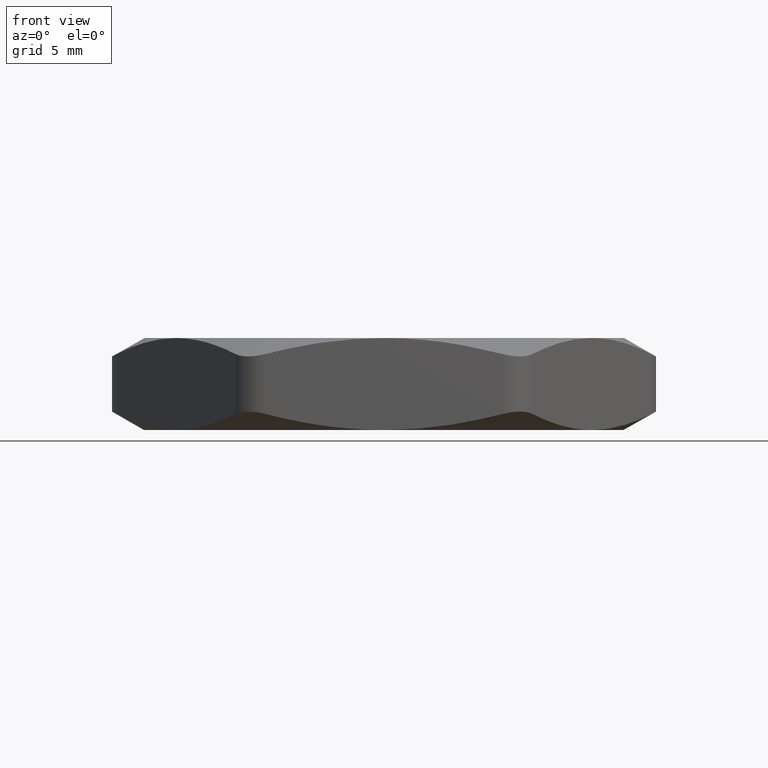
[diagram: clean part render]
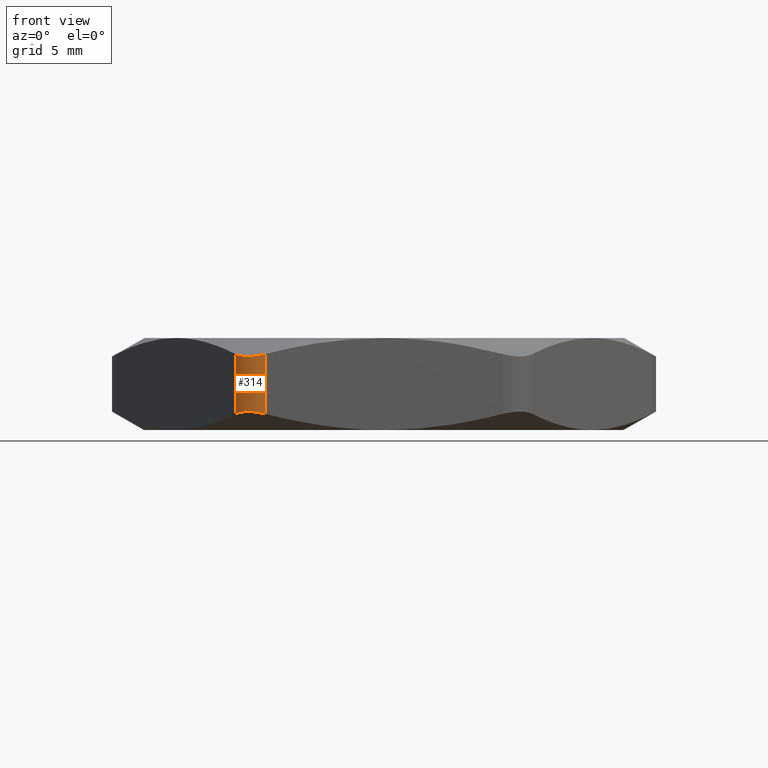
[diagram: same view with one face highlighted and labeled with its STEP entity id]
A machine part, front view. The second image highlights one B-rep face of the part: STEP entity #314.
In plain terms, the highlighted cylindrical surface (edge-blend (fillet) strip) has radius 2.54 mm, axis along (0, 0, -1).
Its self-contained STEP definition (entity closure, byte-faithful):
#103 = VERTEX_POINT ( 'NONE', #1077 ) ;
#106 = VERTEX_POINT ( 'NONE', #1067 ) ;
#108 = EDGE_CURVE ( 'NONE', #106, #109, #1112, .T. ) ;
#109 = VERTEX_POINT ( 'NONE', #1108 ) ;
#162 = EDGE_CURVE ( 'NONE', #103, #163, #1243, .T. ) ;
#163 = VERTEX_POINT ( 'NONE', #1239 ) ;
#221 = EDGE_CURVE ( 'NONE', #109, #103, #1391, .T. ) ;
#278 = EDGE_CURVE ( 'NONE', #163, #106, #1516, .T. ) ;
#314 = ADVANCED_FACE ( 'NONE', ( #1541 ), #1536, .T. ) ;
#315 = EDGE_LOOP ( 'NONE', ( #316, #317, #318, #319 ) ) ;
#316 = ORIENTED_EDGE ( 'NONE', *, *, #221, .F. ) ;
#317 = ORIENTED_EDGE ( 'NONE', *, *, #108, .F. ) ;
#318 = ORIENTED_EDGE ( 'NONE', *, *, #278, .F. ) ;
#319 = ORIENTED_EDGE ( 'NONE', *, *, #162, .F. ) ;
#1067 = CARTESIAN_POINT ( 'NONE',  ( -0.4358994532381677600, -0.6550000000000000300, 0.04721958134638865000 ) ) ;
#1077 = CARTESIAN_POINT ( 'NONE',  ( -0.3492969128597265800, -0.7049999999999999600, 0.2227804186536107600 ) ) ;
#1108 = CARTESIAN_POINT ( 'NONE',  ( -0.4358994532381677600, -0.6550000000000000300, 0.2227804186536113700 ) ) ;
#1109 = DIRECTION ( 'NONE',  ( 0.0000000000000000000, 0.0000000000000000000, 1.000000000000000000 ) ) ;
#1110 = VECTOR ( 'NONE', #1109, 39.37007874015748100 ) ;
#1111 = CARTESIAN_POINT ( 'NONE',  ( -0.4358994532381677600, -0.6550000000000000300, 0.2700000000000000200 ) ) ;
#1112 = LINE ( 'NONE', #1111, #1110 ) ;
#1239 = CARTESIAN_POINT ( 'NONE',  ( -0.3492969128597263100, -0.7049999999999999600, 0.04721958134638920600 ) ) ;
#1240 = DIRECTION ( 'NONE',  ( 0.0000000000000000000, 0.0000000000000000000, -1.000000000000000000 ) ) ;
#1241 = VECTOR ( 'NONE', #1240, 39.37007874015748100 ) ;
#1242 = CARTESIAN_POINT ( 'NONE',  ( -0.3492969128597239700, -0.7049999999999999600, 0.2700000000000000200 ) ) ;
#1243 = LINE ( 'NONE', #1242, #1241 ) ;
#1380 = CARTESIAN_POINT ( 'NONE',  ( -0.3492969128597265800, -0.7049999999999999600, 0.2227804186536107600 ) ) ;
#1381 = CARTESIAN_POINT ( 'NONE',  ( -0.3579153881233679300, -0.7050000000000002900, 0.2205713585014348600 ) ) ;
#1382 = CARTESIAN_POINT ( 'NONE',  ( -0.3666474123574546800, -0.7038672647533991100, 0.2188516165337894300 ) ) ;
#1383 = CARTESIAN_POINT ( 'NONE',  ( -0.3834696504457439900, -0.6993822010684029900, 0.2165566018828655200 ) ) ;
#1384 = CARTESIAN_POINT ( 'NONE',  ( -0.3917624365260937200, -0.6959611015490526600, 0.2159598489262498900 ) ) ;
#1385 = CARTESIAN_POINT ( 'NONE',  ( -0.4069776264820405000, -0.6871594667174537600, 0.2159673461466405900 ) ) ;
#1386 = CARTESIAN_POINT ( 'NONE',  ( -0.4140161126246345600, -0.6817342817714963100, 0.2165617854518041800 ) ) ;
#1387 = CARTESIAN_POINT ( 'NONE',  ( -0.4263709331305969300, -0.6693142302797981900, 0.2188831182167219100 ) ) ;
#1388 = CARTESIAN_POINT ( 'NONE',  ( -0.4315914703087659300, -0.6624616453118630200, 0.2205720017040976900 ) ) ;
#1389 = CARTESIAN_POINT ( 'NONE',  ( -0.4358994532381677600, -0.6550000000000000300, 0.2227804186536113700 ) ) ;
#1391 = B_SPLINE_CURVE_WITH_KNOTS ( 'NONE', 3,
 ( #1389, #1388, #1387, #1386, #1385, #1384, #1383, #1382, #1381, #1380 ),
 .UNSPECIFIED., .F., .F.,
 ( 4, 2, 2, 2, 4 ),
 ( 0.0000000000000000000, 0.0006686882709469507100, 0.001337376541893901400, 0.002006064812840852000, 0.002674753083787802900 ),
 .UNSPECIFIED. ) ;
#1504 = CARTESIAN_POINT ( 'NONE',  ( -0.4358994532381677600, -0.6550000000000000300, 0.04721958134638865000 ) ) ;
#1505 = CARTESIAN_POINT ( 'NONE',  ( -0.4315902156063468600, -0.6624638185202023100, 0.04942864149856485100 ) ) ;
#1506 = CARTESIAN_POINT ( 'NONE',  ( -0.4262432259899855400, -0.6694596057100812300, 0.05114838346621022900 ) ) ;
#1507 = CARTESIAN_POINT ( 'NONE',  ( -0.4139479278570436500, -0.6817855594005524100, 0.05344339811713431900 ) ) ;
#1508 = CARTESIAN_POINT ( 'NONE',  ( -0.4068387757242371600, -0.6872567730546103000, 0.05404015107375000100 ) ) ;
#1509 = CARTESIAN_POINT ( 'NONE',  ( -0.3916087413872652600, -0.6960326966640670900, 0.05403265385335957000 ) ) ;
#1510 = CARTESIAN_POINT ( 'NONE',  ( -0.3833911503325404500, -0.6994156119947598800, 0.05343821454819604900 ) ) ;
#1511 = CARTESIAN_POINT ( 'NONE',  ( -0.3664576599714380300, -0.7039051746662713400, 0.05111688178327860500 ) ) ;
#1512 = CARTESIAN_POINT ( 'NONE',  ( -0.3579128787185275100, -0.7049999999999998500, 0.04942799829590921500 ) ) ;
#1513 = CARTESIAN_POINT ( 'NONE',  ( -0.3492969128597263100, -0.7049999999999999600, 0.04721958134638920600 ) ) ;
#1516 = B_SPLINE_CURVE_WITH_KNOTS ( 'NONE', 3,
 ( #1513, #1512, #1511, #1510, #1509, #1508, #1507, #1506, #1505, #1504 ),
 .UNSPECIFIED., .F., .F.,
 ( 4, 2, 2, 2, 4 ),
 ( 2.841271722962649100E-017, 0.0006686882709469881200, 0.001337376541893947800, 0.002006064812840907500, 0.002674753083787867500 ),
 .UNSPECIFIED. ) ;
#1531 = DIRECTION ( 'NONE',  ( -1.000000000000000000, 0.0000000000000000000, 0.0000000000000000000 ) ) ;
#1532 = DIRECTION ( 'NONE',  ( 0.0000000000000000000, 0.0000000000000000000, -1.000000000000000000 ) ) ;
#1533 = CARTESIAN_POINT ( 'NONE',  ( -0.3492969128597239700, -0.6049999999999999800, 0.2700000000000000200 ) ) ;
#1534 = AXIS2_PLACEMENT_3D ( 'NONE', #1533, #1532, #1531 ) ;
#1536 = CYLINDRICAL_SURFACE ( 'NONE', #1534, 0.1000000000000000200 ) ;
#1541 = FACE_OUTER_BOUND ( 'NONE', #315, .T. ) ;